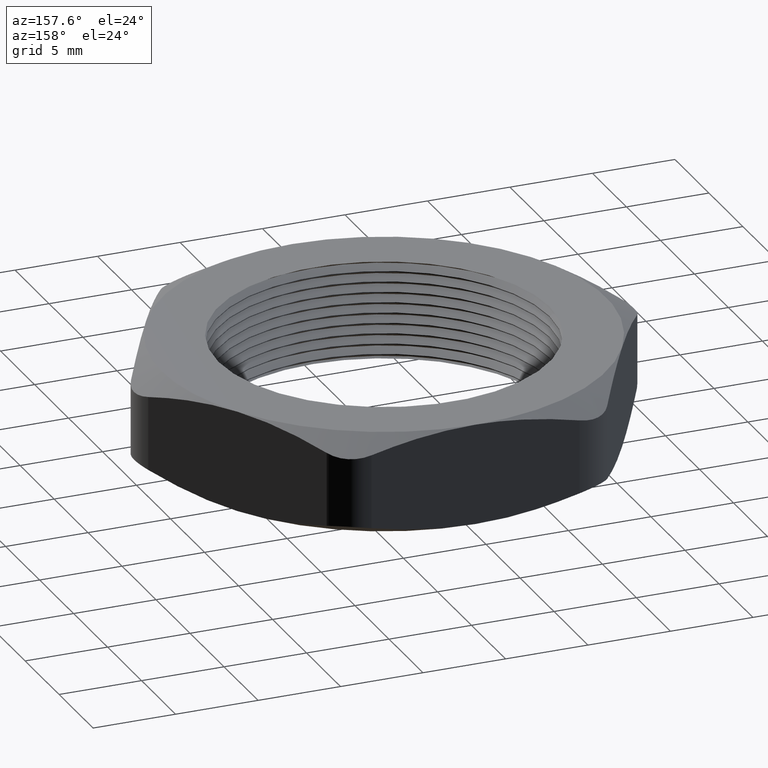
[diagram: clean part render]
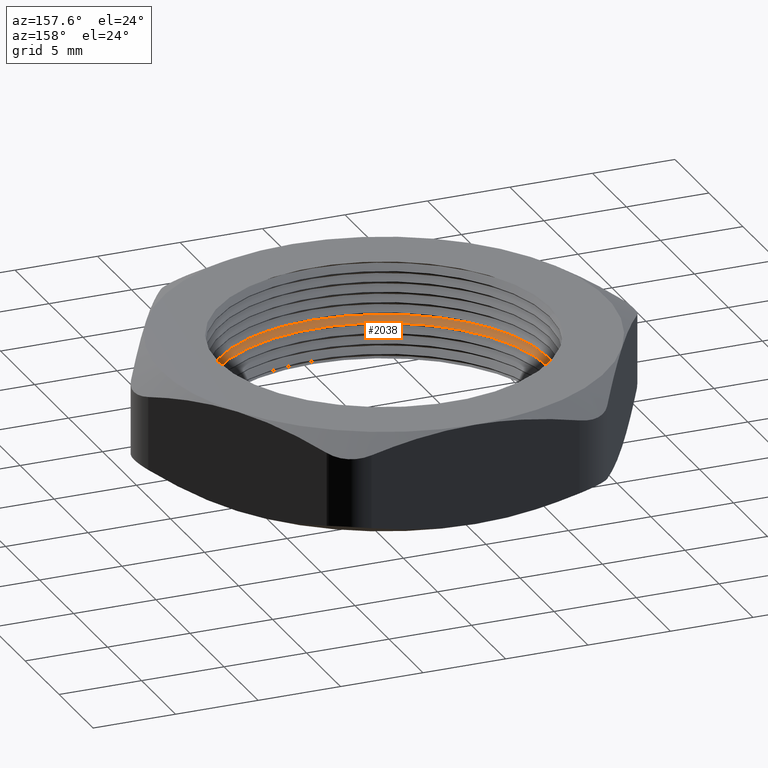
[diagram: same view with one face highlighted and labeled with its STEP entity id]
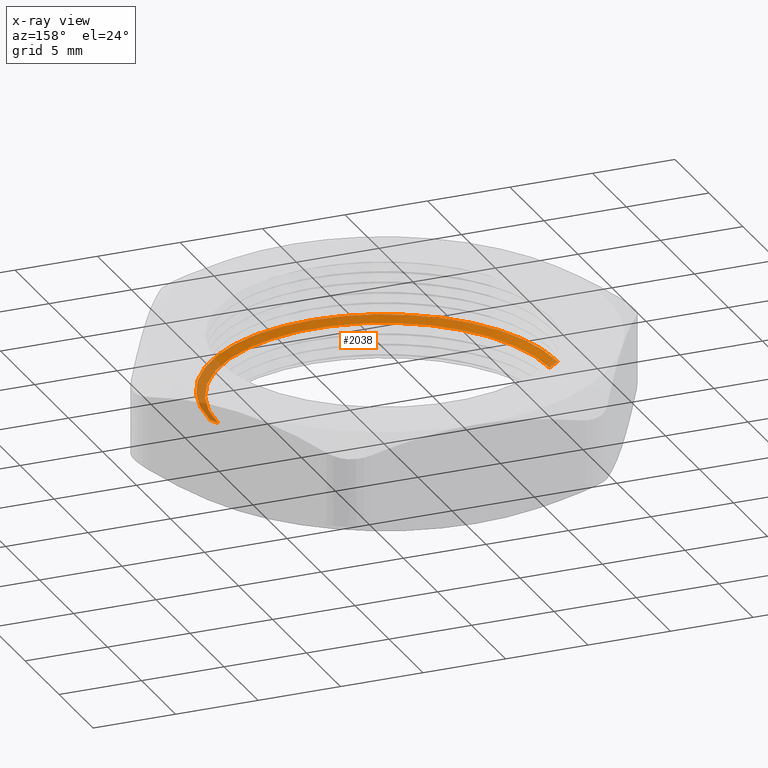
[diagram: x-ray of the same camera — body ghosted, the highlighted face saturated]
A machine part, auxiliary view. The second image highlights one B-rep face of the part: STEP entity #2038.
The next image is the same camera in x-ray: the body ghosted, the highlighted face saturated — about 17% of this face is hidden behind the body in this view.
In plain terms, the highlighted conical surface has half-angle 60 deg.
Its self-contained STEP definition (entity closure, byte-faithful):
#1088 = DIRECTION ( 'NONE',  ( 0.8660254037844351500, 0.0000000000000000000, 0.5000000000000058800 ) ) ;
#1089 = VECTOR ( 'NONE', #1088, 39.37007874015748100 ) ;
#1090 = CARTESIAN_POINT ( 'NONE',  ( 0.3950000000000000200, 0.0000000000000000000, 0.09190598923241501100 ) ) ;
#1091 = LINE ( 'NONE', #1090, #1089 ) ;
#1092 = CARTESIAN_POINT ( 'NONE',  ( 0.4150000000000000400, 5.082284216461516300E-017, 0.1034529946162077000 ) ) ;
#1093 = DIRECTION ( 'NONE',  ( 1.000000000000000000, 0.0000000000000000000, 0.0000000000000000000 ) ) ;
#1094 = DIRECTION ( 'NONE',  ( 0.0000000000000000000, 0.0000000000000000000, 1.000000000000000000 ) ) ;
#1095 = CARTESIAN_POINT ( 'NONE',  ( 0.0000000000000000000, 0.0000000000000000000, 0.1034529946162077000 ) ) ;
#1096 = AXIS2_PLACEMENT_3D ( 'NONE', #1095, #1094, #1093 ) ;
#1097 = CIRCLE ( 'NONE', #1096, 0.4150000000000000400 ) ;
#1098 = CARTESIAN_POINT ( 'NONE',  ( -0.4150000000000000400, 0.0000000000000000000, 0.1034529946162077000 ) ) ;
#1099 = DIRECTION ( 'NONE',  ( -0.8660254037844351500, 1.060575238724902700E-016, 0.5000000000000058800 ) ) ;
#1100 = VECTOR ( 'NONE', #1099, 39.37007874015748100 ) ;
#1101 = CARTESIAN_POINT ( 'NONE',  ( -0.3950000000000000200, 4.837354856632045600E-017, 0.09190598923241501100 ) ) ;
#1102 = LINE ( 'NONE', #1101, #1100 ) ;
#1103 = CARTESIAN_POINT ( 'NONE',  ( 0.3950000000000000200, 4.837354856632044300E-017, 0.09190598923241501100 ) ) ;
#1104 = CARTESIAN_POINT ( 'NONE',  ( -0.3950000000000000200, 0.0000000000000000000, 0.09190598923241501100 ) ) ;
#1105 = DIRECTION ( 'NONE',  ( 1.000000000000000000, 0.0000000000000000000, 0.0000000000000000000 ) ) ;
#1106 = DIRECTION ( 'NONE',  ( 0.0000000000000000000, 0.0000000000000000000, 1.000000000000000000 ) ) ;
#1107 = CARTESIAN_POINT ( 'NONE',  ( 0.0000000000000000000, 0.0000000000000000000, 0.09190598923241501100 ) ) ;
#1108 = AXIS2_PLACEMENT_3D ( 'NONE', #1107, #1106, #1105 ) ;
#1109 = CIRCLE ( 'NONE', #1108, 0.3950000000000000200 ) ;
#1994 = DIRECTION ( 'NONE',  ( 1.000000000000000000, 0.0000000000000000000, 0.0000000000000000000 ) ) ;
#1995 = DIRECTION ( 'NONE',  ( 0.0000000000000000000, 0.0000000000000000000, 1.000000000000000000 ) ) ;
#1996 = CARTESIAN_POINT ( 'NONE',  ( 0.0000000000000000000, 0.0000000000000000000, 0.09190598923241501100 ) ) ;
#1997 = AXIS2_PLACEMENT_3D ( 'NONE', #1996, #1995, #1994 ) ;
#1999 = CONICAL_SURFACE ( 'NONE', #1997, 0.3950000000000000200, 1.047197551196591000 ) ;
#2000 = FACE_OUTER_BOUND ( 'NONE', #2037, .T. ) ;
#2037 = EDGE_LOOP ( 'NONE', ( #2211, #2215, #2218, #2221 ) ) ;
#2038 = ADVANCED_FACE ( 'NONE', ( #2000 ), #1999, .F. ) ;
#2211 = ORIENTED_EDGE ( 'NONE', *, *, #2212, .F. ) ;
#2212 = EDGE_CURVE ( 'NONE', #2213, #2214, #1109, .T. ) ;
#2213 = VERTEX_POINT ( 'NONE', #1104 ) ;
#2214 = VERTEX_POINT ( 'NONE', #1103 ) ;
#2215 = ORIENTED_EDGE ( 'NONE', *, *, #2216, .T. ) ;
#2216 = EDGE_CURVE ( 'NONE', #2213, #2217, #1102, .T. ) ;
#2217 = VERTEX_POINT ( 'NONE', #1098 ) ;
#2218 = ORIENTED_EDGE ( 'NONE', *, *, #2219, .T. ) ;
#2219 = EDGE_CURVE ( 'NONE', #2217, #2220, #1097, .T. ) ;
#2220 = VERTEX_POINT ( 'NONE', #1092 ) ;
#2221 = ORIENTED_EDGE ( 'NONE', *, *, #2222, .F. ) ;
#2222 = EDGE_CURVE ( 'NONE', #2214, #2220, #1091, .T. ) ;